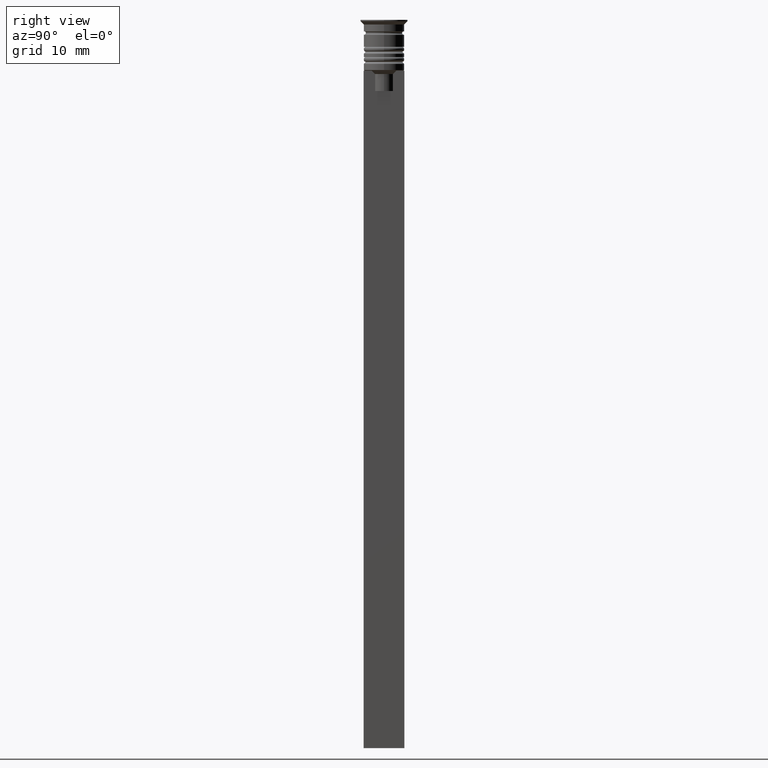
[diagram: clean part render]
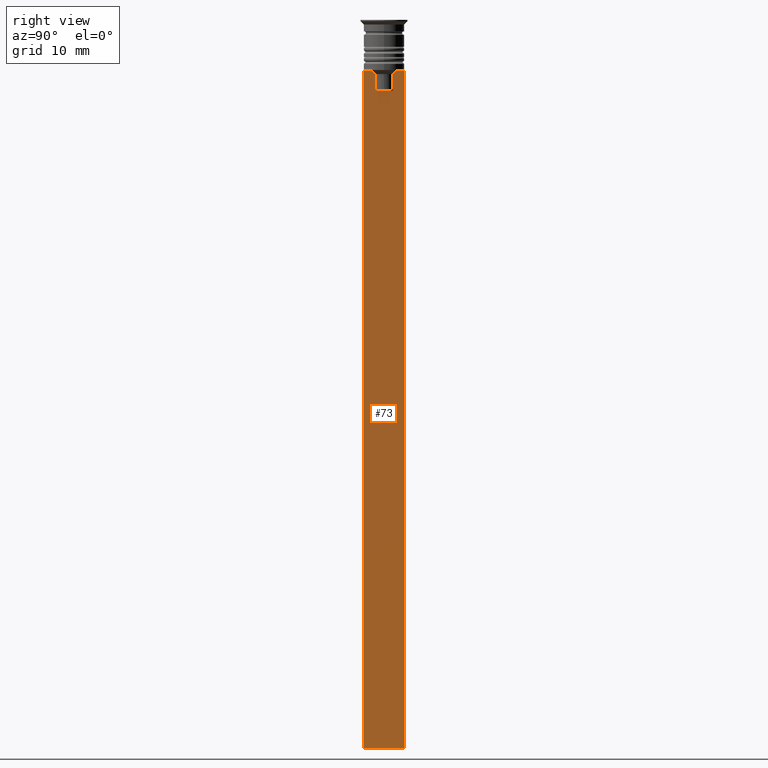
[diagram: same view with one face highlighted and labeled with its STEP entity id]
A machine part, right view. The second image highlights one B-rep face of the part: STEP entity #73.
In plain terms, the highlighted planar face has unit normal (-1, 0, 0).
Its self-contained STEP definition (entity closure, byte-faithful):
#33 = CARTESIAN_POINT ( 'NONE',  ( 0.4999999999999998890, 1.307669683062199439, 0.000000000000000000 ) ) ;
#36 = CARTESIAN_POINT ( 'NONE',  ( 0.4999999999999998890, 1.307669683062199439, -8.000000000000000000 ) ) ;
#46 = DIRECTION ( 'NONE',  ( 0.000000000000000000, 0.000000000000000000, -1.000000000000000000 ) ) ;
#73 = ADVANCED_FACE ( 'NONE', ( #1940 ), #1732, .F. ) ;
#135 = ORIENTED_EDGE ( 'NONE', *, *, #342, .F. ) ;
#145 = CARTESIAN_POINT ( 'NONE',  ( 0.4999999999999998890, -2.856571371417139904, -7.500000000000000000 ) ) ;
#147 = LINE ( 'NONE', #862, #1865 ) ;
#152 = ORIENTED_EDGE ( 'NONE', *, *, #2110, .T. ) ;
#158 = ORIENTED_EDGE ( 'NONE', *, *, #1859, .T. ) ;
#225 = VERTEX_POINT ( 'NONE', #751 ) ;
#255 = LINE ( 'NONE', #1360, #890 ) ;
#258 = ORIENTED_EDGE ( 'NONE', *, *, #2251, .T. ) ;
#278 = VERTEX_POINT ( 'NONE', #2236 ) ;
#329 = VERTEX_POINT ( 'NONE', #36 ) ;
#335 = CARTESIAN_POINT ( 'NONE',  ( 0.4999999999999998890, 1.833030277982335754, -7.500000000000000000 ) ) ;
#342 = EDGE_CURVE ( 'NONE', #225, #631, #1138, .T. ) ;
#402 = EDGE_CURVE ( 'NONE', #1968, #445, #2222, .T. ) ;
#403 = DIRECTION ( 'NONE',  ( 0.000000000000000000, -1.000000000000000000, 0.000000000000000000 ) ) ;
#431 = VECTOR ( 'NONE', #760, 1000.000000000000000 ) ;
#445 = VERTEX_POINT ( 'NONE', #145 ) ;
#454 = LINE ( 'NONE', #2198, #2124 ) ;
#462 = CARTESIAN_POINT ( 'NONE',  ( 0.4999999999999998890, 1.659046061654642967, -7.667851756010362507 ) ) ;
#479 = CARTESIAN_POINT ( 'NONE',  ( 0.4999999999999998890, 2.856571371417139904, -7.500000000000000000 ) ) ;
#494 = EDGE_CURVE ( 'NONE', #1045, #1968, #705, .T. ) ;
#495 = CARTESIAN_POINT ( 'NONE',  ( 0.4999999999999998890, -1.833030277982335754, -7.500000000000000000 ) ) ;
#509 = CARTESIAN_POINT ( 'NONE',  ( 0.4999999999999998890, -1.307669683062199439, -8.000000000000000000 ) ) ;
#564 = DIRECTION ( 'NONE',  ( -0.000000000000000000, -0.000000000000000000, 1.000000000000000000 ) ) ;
#567 = CARTESIAN_POINT ( 'NONE',  ( 0.4999999999999998890, 1.833030277982335754, -7.500000000000000000 ) ) ;
#598 = EDGE_CURVE ( 'NONE', #975, #2189, #2156, .T. ) ;
#630 = DIRECTION ( 'NONE',  ( 0.000000000000000000, -1.000000000000000000, 0.000000000000000000 ) ) ;
#631 = VERTEX_POINT ( 'NONE', #1802 ) ;
#705 = B_SPLINE_CURVE_WITH_KNOTS ( 'NONE', 3,
 ( #509, #1736, #1560, #495 ),
 .UNSPECIFIED., .F., .F.,
 ( 4, 4 ),
 ( 0.007225659348748082224, 0.007950554640278054835 ),
 .UNSPECIFIED. ) ;
#721 = CARTESIAN_POINT ( 'NONE',  ( 0.4999999999999998890, -3.000000000000000000, -7.500000000000000000 ) ) ;
#741 = CARTESIAN_POINT ( 'NONE',  ( 0.4999999999999998890, -3.000000000000000000, -7.500000000000000000 ) ) ;
#751 = CARTESIAN_POINT ( 'NONE',  ( 0.4999999999999998890, 3.000000000000000000, -7.500000000000000000 ) ) ;
#760 = DIRECTION ( 'NONE',  ( 0.000000000000000000, 0.000000000000000000, -1.000000000000000000 ) ) ;
#816 = CARTESIAN_POINT ( 'NONE',  ( 0.4999999999999998890, 3.000000000000000000, -1.417237469701779329 ) ) ;
#821 = LINE ( 'NONE', #2241, #1001 ) ;
#862 = CARTESIAN_POINT ( 'NONE',  ( 0.4999999999999998890, -1.307669683062199439, 0.000000000000000000 ) ) ;
#890 = VECTOR ( 'NONE', #1172, 1000.000000000000000 ) ;
#908 = CARTESIAN_POINT ( 'NONE',  ( 0.4999999999999998890, -1.307669683062199439, -8.000000000000000000 ) ) ;
#912 = ORIENTED_EDGE ( 'NONE', *, *, #1952, .T. ) ;
#934 = EDGE_LOOP ( 'NONE', ( #1293, #152, #912, #1024, #158, #1651, #1916, #258, #2177, #2235, #135, #962 ) ) ;
#962 = ORIENTED_EDGE ( 'NONE', *, *, #2179, .T. ) ;
#970 = LINE ( 'NONE', #1487, #1791 ) ;
#975 = VERTEX_POINT ( 'NONE', #721 ) ;
#982 = DIRECTION ( 'NONE',  ( 0.000000000000000000, -1.000000000000000000, 0.000000000000000000 ) ) ;
#1001 = VECTOR ( 'NONE', #630, 1000.000000000000000 ) ;
#1024 = ORIENTED_EDGE ( 'NONE', *, *, #1218, .T. ) ;
#1045 = VERTEX_POINT ( 'NONE', #908 ) ;
#1138 = LINE ( 'NONE', #816, #1263 ) ;
#1146 = DIRECTION ( 'NONE',  ( 0.000000000000000000, -1.000000000000000000, 0.000000000000000000 ) ) ;
#1154 = CARTESIAN_POINT ( 'NONE',  ( 0.4999999999999998890, 1.307669683062199439, -10.49999999999999822 ) ) ;
#1170 = CARTESIAN_POINT ( 'NONE',  ( 0.4999999999999998890, -3.000000000000000000, -7.500000000000000000 ) ) ;
#1172 = DIRECTION ( 'NONE',  ( 0.000000000000000000, -1.000000000000000000, 0.000000000000000000 ) ) ;
#1174 = EDGE_CURVE ( 'NONE', #2189, #631, #970, .T. ) ;
#1218 = EDGE_CURVE ( 'NONE', #2221, #278, #255, .T. ) ;
#1225 = AXIS2_PLACEMENT_3D ( 'NONE', #1904, #1747, #2293 ) ;
#1263 = VECTOR ( 'NONE', #46, 1000.000000000000000 ) ;
#1293 = ORIENTED_EDGE ( 'NONE', *, *, #1609, .T. ) ;
#1360 = CARTESIAN_POINT ( 'NONE',  ( 0.4999999999999998890, 1.399999999999997691, -10.49999999999999822 ) ) ;
#1435 = DIRECTION ( 'NONE',  ( 0.000000000000000000, 0.000000000000000000, -1.000000000000000000 ) ) ;
#1487 = CARTESIAN_POINT ( 'NONE',  ( 0.4999999999999998890, -3.000000000000000000, -107.5000000000000000 ) ) ;
#1560 = CARTESIAN_POINT ( 'NONE',  ( 0.4999999999999998890, -1.659011726860414093, -7.667884880598472286 ) ) ;
#1583 = VERTEX_POINT ( 'NONE', #567 ) ;
#1609 = EDGE_CURVE ( 'NONE', #2264, #1583, #2021, .T. ) ;
#1650 = LINE ( 'NONE', #33, #431 ) ;
#1651 = ORIENTED_EDGE ( 'NONE', *, *, #494, .T. ) ;
#1661 = VECTOR ( 'NONE', #1435, 1000.000000000000000 ) ;
#1732 = PLANE ( 'NONE',  #1225 ) ;
#1736 = CARTESIAN_POINT ( 'NONE',  ( 0.4999999999999998890, -1.484307477388859153, -7.835011508197190722 ) ) ;
#1747 = DIRECTION ( 'NONE',  ( -1.000000000000000000, 0.000000000000000000, 0.000000000000000000 ) ) ;
#1765 = CARTESIAN_POINT ( 'NONE',  ( 0.4999999999999998890, 1.307669683062199439, -8.000000000000000000 ) ) ;
#1775 = CARTESIAN_POINT ( 'NONE',  ( 0.4999999999999998890, -3.000000000000000000, -1.417237469701779329 ) ) ;
#1791 = VECTOR ( 'NONE', #2195, 1000.000000000000000 ) ;
#1802 = CARTESIAN_POINT ( 'NONE',  ( 0.4999999999999998890, 3.000000000000000000, -107.5000000000000000 ) ) ;
#1844 = CARTESIAN_POINT ( 'NONE',  ( 0.4999999999999998890, -1.833030277982335754, -7.500000000000000000 ) ) ;
#1859 = EDGE_CURVE ( 'NONE', #278, #1045, #147, .T. ) ;
#1865 = VECTOR ( 'NONE', #564, 1000.000000000000000 ) ;
#1904 = CARTESIAN_POINT ( 'NONE',  ( 0.4999999999999998890, -3.000000000000000000, -1.417237469701779329 ) ) ;
#1916 = ORIENTED_EDGE ( 'NONE', *, *, #402, .T. ) ;
#1940 = FACE_OUTER_BOUND ( 'NONE', #934, .T. ) ;
#1950 = B_SPLINE_CURVE_WITH_KNOTS ( 'NONE', 3,
 ( #335, #462, #2111, #1765 ),
 .UNSPECIFIED., .F., .F.,
 ( 4, 4 ),
 ( 0.003278537493109848298, 0.004003794023484941178 ),
 .UNSPECIFIED. ) ;
#1952 = EDGE_CURVE ( 'NONE', #329, #2221, #1650, .T. ) ;
#1968 = VERTEX_POINT ( 'NONE', #1844 ) ;
#2021 = LINE ( 'NONE', #741, #2227 ) ;
#2042 = CARTESIAN_POINT ( 'NONE',  ( 0.4999999999999998890, -3.000000000000000000, -107.5000000000000000 ) ) ;
#2110 = EDGE_CURVE ( 'NONE', #1583, #329, #1950, .T. ) ;
#2111 = CARTESIAN_POINT ( 'NONE',  ( 0.4999999999999998890, 1.484355510416485835, -7.834966642958598015 ) ) ;
#2124 = VECTOR ( 'NONE', #982, 1000.000000000000000 ) ;
#2156 = LINE ( 'NONE', #1775, #1661 ) ;
#2177 = ORIENTED_EDGE ( 'NONE', *, *, #598, .T. ) ;
#2179 = EDGE_CURVE ( 'NONE', #225, #2264, #454, .T. ) ;
#2189 = VERTEX_POINT ( 'NONE', #2042 ) ;
#2195 = DIRECTION ( 'NONE',  ( 0.000000000000000000, 1.000000000000000000, 0.000000000000000000 ) ) ;
#2198 = CARTESIAN_POINT ( 'NONE',  ( 0.4999999999999998890, -3.000000000000000000, -7.500000000000000000 ) ) ;
#2221 = VERTEX_POINT ( 'NONE', #1154 ) ;
#2222 = LINE ( 'NONE', #1170, #2297 ) ;
#2227 = VECTOR ( 'NONE', #403, 1000.000000000000000 ) ;
#2235 = ORIENTED_EDGE ( 'NONE', *, *, #1174, .T. ) ;
#2236 = CARTESIAN_POINT ( 'NONE',  ( 0.4999999999999998890, -1.307669683062199439, -10.49999999999999822 ) ) ;
#2241 = CARTESIAN_POINT ( 'NONE',  ( 0.4999999999999998890, -3.000000000000000000, -7.500000000000000000 ) ) ;
#2251 = EDGE_CURVE ( 'NONE', #445, #975, #821, .T. ) ;
#2264 = VERTEX_POINT ( 'NONE', #479 ) ;
#2293 = DIRECTION ( 'NONE',  ( 0.000000000000000000, 0.000000000000000000, 1.000000000000000000 ) ) ;
#2297 = VECTOR ( 'NONE', #1146, 1000.000000000000000 ) ;